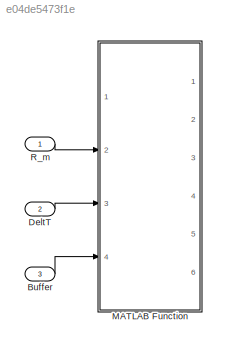
MODEL slx_e04de5473f1e
KIND model
CONFIG AbsTol = auto
CONFIG FixedStep = auto
CONFIG MaxStep = auto
CONFIG MinStep = auto
CONFIG RelTol = 1e-3
CONFIG SampleTimeConstraint = Unconstrained
CONFIG Solver = ode45
CONFIG SolverMode = Auto
CONFIG SolverName = ode45
CONFIG StartTime = 0.0
CONFIG StopTime = 10.0
BLOCK [Inport] Buffer
  IconDisplay = Port number
  Port = 3
BLOCK [Inport] DeltT
  IconDisplay = Port number
  Port = 2
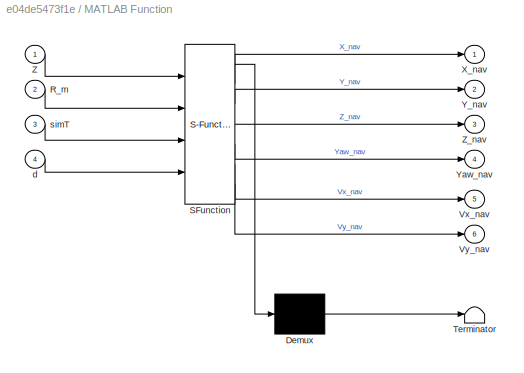
BLOCK [SubSystem] MATLAB Function
  ErrorFcn = Stateflow.Translate.translate
  PermitHierarchicalResolution = ExplicitOnly
  Ports = [4, 6]
  RequestExecContextInheritance = off
  SFBlockType = MATLAB Function
  TreatAsAtomicUnit = on
  Variant = off
BLOCK [Demux] MATLAB Function/ Demux 
  Outputs = 1
  Ports = [1, 1]
BLOCK [S-Function] MATLAB Function/ SFunction 
  EnableBusSupport = off
  FunctionName = sf_sfun
  PortCounts = [4 7]
  Ports = [4, 7]
  SFunctionDeploymentMode = off
  Tag = Stateflow S-Function delay 8
BLOCK [Terminator] MATLAB Function/ Terminator 
BLOCK [Inport] MATLAB Function/R_m
  IconDisplay = Port number
  Port = 2
BLOCK [Outport] MATLAB Function/Vx_nav
  IconDisplay = Port number
  Port = 5
BLOCK [Outport] MATLAB Function/Vy_nav
  IconDisplay = Port number
  Port = 6
BLOCK [Outport] MATLAB Function/X_nav
  IconDisplay = Port number
BLOCK [Outport] MATLAB Function/Y_nav
  IconDisplay = Port number
  Port = 2
BLOCK [Outport] MATLAB Function/Yaw_nav
  IconDisplay = Port number
  Port = 4
BLOCK [Inport] MATLAB Function/Z
  IconDisplay = Port number
BLOCK [Outport] MATLAB Function/Z_nav
  IconDisplay = Port number
  Port = 3
BLOCK [Inport] MATLAB Function/d
  IconDisplay = Port number
  Port = 4
BLOCK [Inport] MATLAB Function/simT
  IconDisplay = Port number
  Port = 3
BLOCK [Inport] R_m
  IconDisplay = Port number
LINE Buffer:1 -> MATLAB Function:4
LINE DeltT:1 -> MATLAB Function:3
LINE R_m:1 -> MATLAB Function:2
CHART MATLAB Function states=1 transitions=1
  STATE_LABEL 'eML_blk_kernel()'
  STATE_LABEL 'SCRIPT:\nfunction [X_nav,Y_nav,Z_nav,Yaw_nav,Vx_nav,Vy_nav] = fcn(Z,R_m,simT,d)\npersistent Phi;\nif isempty(Phi)\n    Phi = [0 0 0 1 0 0 0;\n           0 0 0 0 1 0 0;\n           0 0 0 0 0 1 0;\n           0 0 0 0 0 0 0;\n           0 0 0 0 0 0 0;\n           0 0 0 0 0 0 0;\n           0 0 0 0 0 0 0];\nend\n\npersistent Tao;\nif isempty(Tao)\n    Tao = [0 0 0 0 0 0 0;\n           0 0 0 0 0 0 0;\n           0 0 0 ...<+1454ch>'
